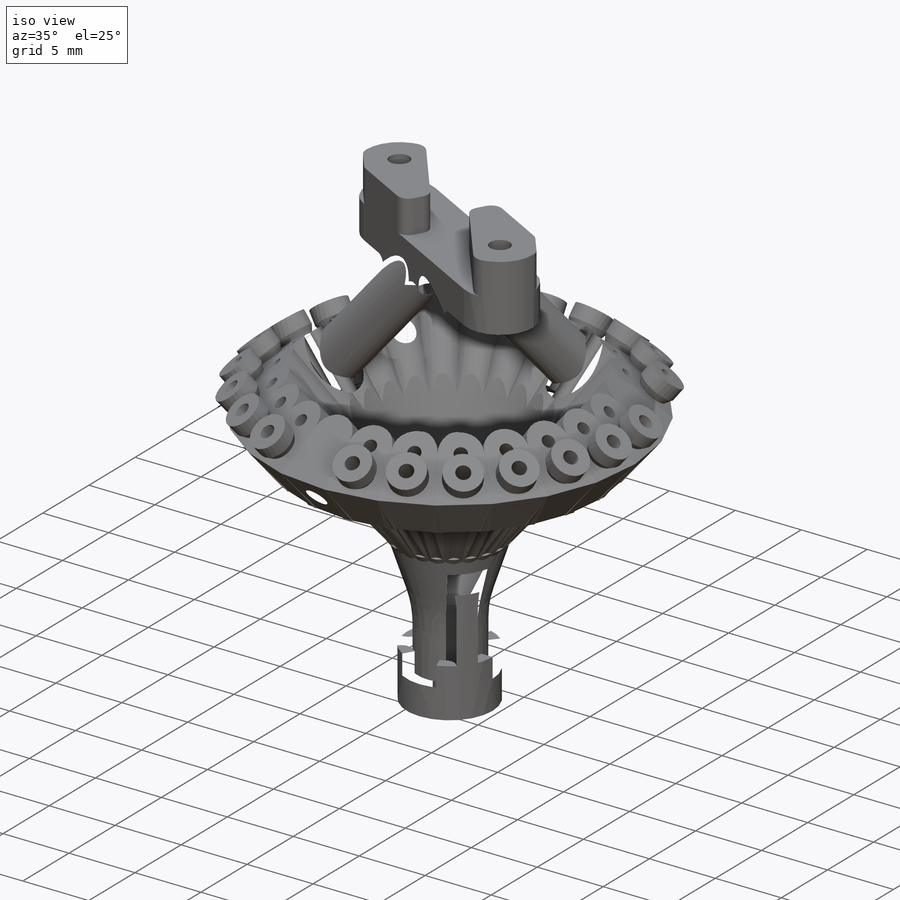
[diagram: iso view]
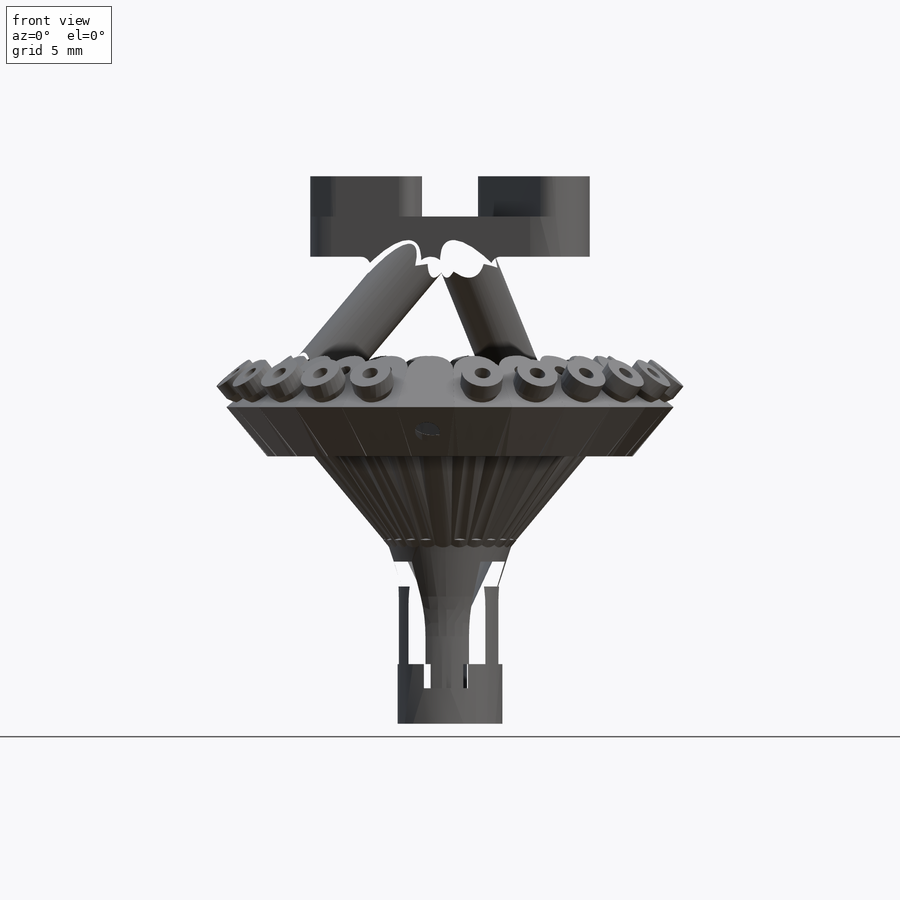
[diagram: front view]
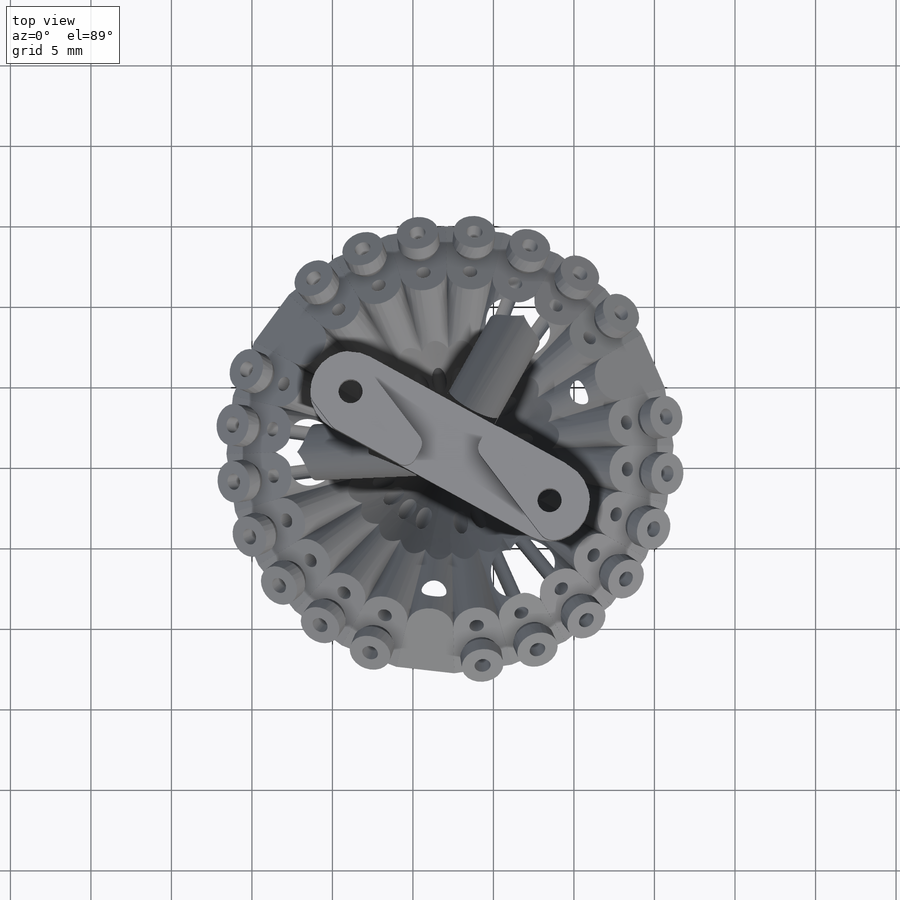
[diagram: top view]
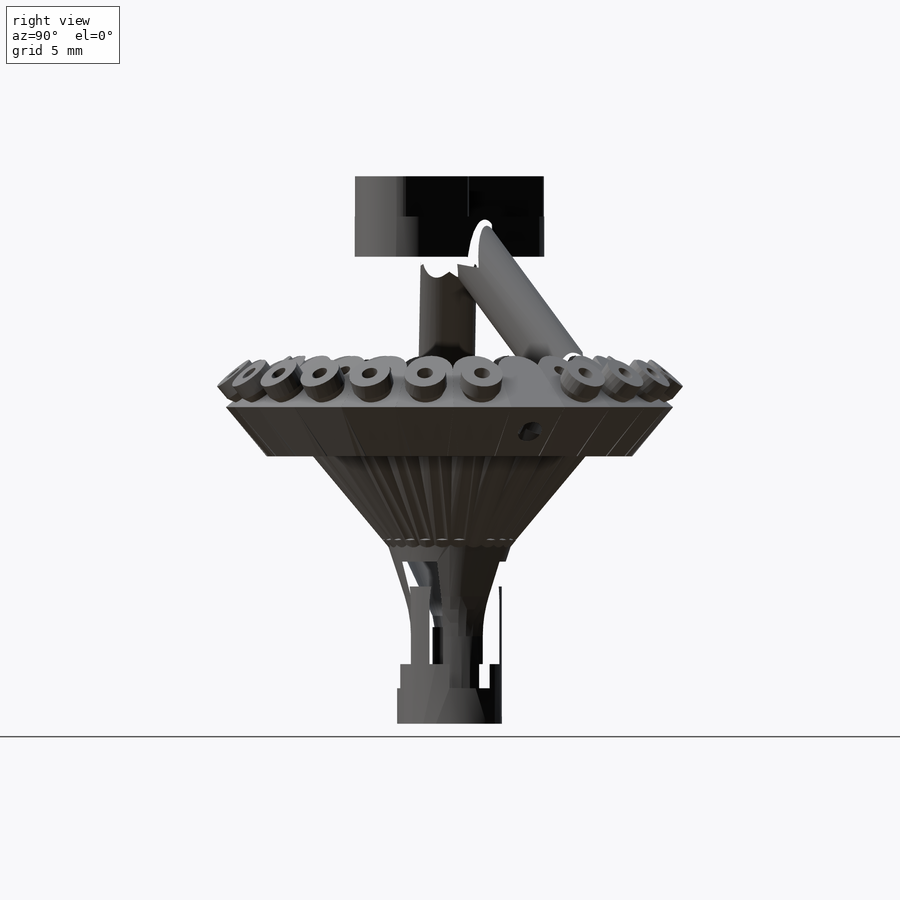
[diagram: right view]
SOLIDWORKS PART (.sldprt)
format: sldprt  version: not decoded by parser v0  size: 2,354,688 bytes
history: native  units: mm
features: sketch x26, extrude x13, plane x12, fillet x7, pattern_circular x7, cut_extrude x7, revolve x3, material x1, cut_revolve x1 + 1 further entry (+18 scaffold rows collapsed; 8 parser-record rows omitted)
feature tree (104):
  scaffold x18  (default folders/planes/origin — collapsed)
  material  "Material <not specified>"
  plane  "Drive bottom"
  plane  "Rat midline plane"
  "Bregma (origin)"
  sketch  "Stereotaxic Coordinates (set coords)"
  plane  "Drive A-P axis plane"
  parser-record x8  (decoder bookkeeping rows leaked as tree rows — omitted from the tree; the rows remain in map.json)
  sketch  "Cannula sketch"  dims[c1.D1=~0.621988mm c1.D2=2.11mm c1.D3=1.85mm c1.D4=0.65mm c2.D1=2.0mm]
  extrude  "base lip (set collector cannula OD in sketch)"  Depth=3.7mm
  sketch  "base sketch"  dims[c1.D1=4.92mm c1.D2=2.46mm c2.D1=1.4mm]
  extrude  "base (set base height)"  Depth=8.7mm
  plane  "base top plane"  Offset=0mm
  plane  "base top plane offset down"  Offset=2mm
  sketch  "Base flare sketch"  dims[D1=0.0mm]
  extrude  "Base extension flare"  Depth=4.5mm
  fillet  "Base extension fillet"  Radius=8mm
  sketch  "microdrive focus point"
  plane  "seed drive rotation plane (set rotation from midline)"
  sketch  "seed drive axis (set drive angle)"  dims[c1.D1=~3.50582mm c2.D1=40.0deg]
  plane  "seed drive bottom plane"
  plane  "seed drive top plane (set drive length)"  Offset=17.25mm
  sketch  "bottom piece sketch"  dims[c1.D1=1.0mm c1.D2=0.9mm c1.D3=0.9mm c1.D4=1.75mm c1.D5=2.0mm c1.D7=3.5mm c2.D3=1.0mm c2.D4=1.812mm c2.D6=1.2mm]
  extrude  "seed drive bottom piece ledge"  Depth=4mm
  sketch  "drive shaft sketch"  dims[c1.D1=0.8mm c1.D2=0.25mm c2.D1=1.0mm]
  extrude  "seed drive bottom piece shaft"  Depth=1mm
  pattern_circular  "microdrive base circular pattern (set iter)"  Count=24 Angle=15deg
  sketch  "drive screw hole sketch"
  cut_extrude  "seed drive screw hole"  [1 undecoded]
  sketch  "screw clearance sketch"  dims[D1=0.2mm]
  cut_extrude  "seed drive screw clearance cut (set screw travel)"  Depth=8.510104mm
  sketch  "support post sketch"
  cut_extrude  "seed drive support post hole (23Ga)"  [1 undecoded]
  sketch  "tap guide sleeve sketch"  dims[D1=0.8mm]
  extrude  "seed drive tap guide sleeve"  Depth=1.5mm
  sketch  "tap guide notch sketch"  dims[D1=0.25mm D2=0.5mm]
  cut_revolve  "seed drive tap guide notch"  Angle=360deg
  pattern_circular  "microdrive holes circular pattern (match iter above!)"  Count=24 Angle=360deg
  sketch  "Center hole flare cut sketch"
  cut_extrude  "Center hole flare cut"  [1 undecoded]
  sketch  "Collector cannula stop lip sketch"  dims[D1=0.12mm D2=0.7mm]
  revolve  "Collector cannula stop lip"  Angle=360deg
  plane  "tripod top plane (set height 2)"  Offset=25.3mm
  sketch  "EIB mount sketch"  dims[c1.D4=1.5mm c1.D5=1.5mm c1.D1=14.1mm c1.D2=2.5mm c1.D3=5.0mm c1.D6=14.1mm c2.D1=6.25mm c2.D2=3.25mm c2.D6=~14.089003mm c2.D7=~14.089003mm c3.D7=~37.276953deg]
  extrude  "EIB mount"  Depth=5mm
  plane  "Tripod leg plane (set angle)"
  sketch  "Tripod leg sketch"  dims[c1.D4=1.5mm c1.D1=1.75mm c1.D2=1.75mm c1.D3=3.5mm c2.D2=~0.403874mm]
  extrude  "Tripod leg"  [1 undecoded]
  sketch  "EIB cut sketch"  dims[c1.D1=2.3mm c1.D2=3.7mm c1.D3=4.0mm c1.D4=2.3mm c1.D5=2.3mm c1.D6=~34.127063mm c2.D6=205.0deg c2.D7=20.0mm c3.D6=1.75mm c3.D8=1.75mm c4.D6=~53.11326mm c5.D6=~156.599049deg c5.D2=~1.508653mm c5.D3=~3.187258mm c6.D6=~5.31323mm c6.D7=~5.53027mm c6.D8=~7.627018mm c6.D9=~9.971295mm c6.D10=~12.068043mm c6.D11=~20.055093mm c6.D12=~22.15184mm c6.D13=~1.59196mm c6.D14=~1.888648mm c6.D15=~4.783373mm c6.D16=~6.880121mm c6.D17=~10.126782mm c6.D18=~12.22353mm c6.D19=~17.547185mm c7.D7=~5.53027mm c7.D8=~7.627018mm c7.D11=~20.055093mm c7.D12=~4.783373mm c7.D15=~1.059979mm c7.D16=~3.902625mm c7.D19=~4.543484mm c7.D20=~5.775399mm c7.D21=~11.437863mm c7.D22=34.3607mm c7.D23=~37.107063mm c7.D24=~13.922242mm c7.D25=~14.867572mm c7.D26=~21.690092mm c7.D27=~22.635422mm c8.D15=~1.059979mm c8.D16=~3.902625mm c8.D19=~4.543484mm c8.D20=~37.107063mm c8.D2=6.25mm c8.D3=6.25mm c8.D6=~14.089003mm c9.D6=~24.268483deg c9.D7=1.15mm c10.D6=~14.089003mm c11.D6=24.0deg c11.D4=~1.32654mm c11.D5=15.0mm c12.D4=1.5mm]
  cut_extrude  "EIB Cut"  [1 undecoded]
  pattern_circular  "Tripod circular pattern"  Count=3 Angle=120deg
  fillet  "EIB cut fillet 1"  Radius=0.75mm
  fillet  "EIB cut fillet 2"  Radius=1mm
  fillet  "Tripod fillet 1"  Radius=0.6mm
  fillet  "Tripod fillet 2"  Radius=0.7mm
  sketch  "base notch sketch"  dims[c1.D2=2.4mm c1.D1=~3.599139mm c2.D1=50.0deg]
  cut_extrude  "Base Notch Cut"  Depth=1.5mm
  sketch  "base support sketch"  dims[c1.D1=~3.248593mm c2.D1=25.0deg c2.D2=~0.853962mm]
  extrude  "Base Support Extrude"  [1 undecoded]
  fillet  "base support fillet 1"  Radius=5mm
  fillet  "base support fillet 2"  Radius=0.7mm
  pattern_circular  "Base support circular pattern"  Count=3 Angle=120deg
  sketch  "Cone Sketch"  dims[c1.D3=3.0mm c1.D4=1.0mm c1.D5=0.2mm c1.D10=~0.652704mm c1.D11=~0.644269mm c2.D10=0.8mm c2.D1=0.6mm c2.D2=35.0mm c3.D1=6.5mm c3.D2=1.0mm c3.D6=~0.596942mm c3.D7=~2.025583mm c4.D1=25.0mm c4.D3=~2.607591mm c5.D3=~230.227997deg c5.D1=37.0mm c6.D3=~4.960524mm c6.D1=6.0mm c6.D2=1.0mm c7.D3=6.0mm c7.D4=2.0mm c7.D5=1.5mm c7.D6=1.0mm c7.D7=1.0mm c7.D8=1.0mm c7.D9=0.6mm c8.D3=3.0mm c8.D10=~16.379571mm c9.D3=~16.22505mm c9.D10=~16.379571mm c10.D3=~16.501222mm c10.D10=2.0mm c11.D3=~17.738442mm c11.D10=~17.991082mm c12.D3=~16.501222mm c12.D10=~14.629571mm c13.D3=~14.714103mm c13.D10=~15.269277mm c13.D1=6.0mm c14.D3=7.5mm c14.D10=~0.644269mm]
  revolve  "Cone revolve"  [1 undecoded]
  extrude  "Cone"  [1 undecoded]
  plane  "Screw hole plane"  Offset=0mm
  sketch  "screw hole sketch"  dims[c1.D1=1.55mm c1.D2=2.0mm c1.D3=2.0mm c1.D4=~1.735653mm c2.D3=1.775mm c2.D4=~1.773561mm c2.D2=1.5mm]
  extrude  "Screw hole reinforcement"  [1 undecoded]
  sketch  "screw hole sketch<5>"  dims[D1=1.5mm]
  pattern_circular  "Screw hole reinforcement circular pattern"  Count=3 Angle=120deg
  cut_extrude  "Screw holes"  [1 undecoded]
  pattern_circular  "Screw holes circular pattern"  Count=3 Angle=120deg
  plane  "Drive notch plane"  Offset=0mm
  sketch  "Sketch120"  dims[D1=~0.840451mm D2=~1.284999mm D3=0.84mm D4=1.28mm D5=15.5mm]
  extrude  "Drive notches"  Depth=0.35mm
  pattern_circular  "Drive notch circular pattern"  Count=24 Angle=360deg
  sketch  "Cap sketch (driven by cone sketch)"  dims[D1=1.5mm D2=1.5mm]
  revolve  "Cap revolve"  [1 undecoded]
  extrude  "Cap"  [1 undecoded]
  sketch  "Guide tube path sketch"  dims[D1=10.0mm D2=1.5mm]
decode coverage: 47 of 64 modeling features carry decoded parameters; 1 rows unclassified (native names shown)
note: ~ marks probable driven/reference dimensions
note: 12 parameter values undecoded
summary: no parameter record found for 12 features
note: suppression state not decoded; provenance and decode notes live in map.json
